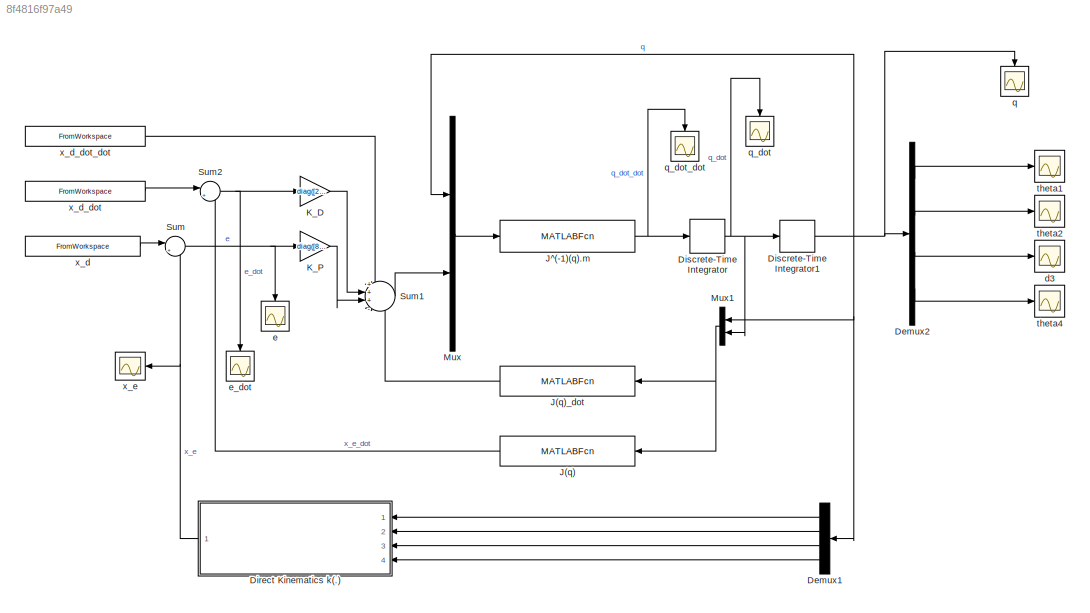
MODEL slx_8f4816f97a49
KIND model
CONFIG AbsTol = auto
CONFIG EnableMultiTasking = off
CONFIG FixedStep = auto
CONFIG MaxStep = auto
CONFIG MinStep = auto
CONFIG RelTol = 1e-3
CONFIG SampleTimeConstraint = Unconstrained
CONFIG Solver = VariableStepAuto
CONFIG SolverName = VariableStepAuto
CONFIG StartTime = 0.0
CONFIG StopTime = 4
BLOCK [Demux] Demux1
  DisplayOption = bar
  Ports = [1, 4]
BLOCK [Demux] Demux2
  DisplayOption = bar
  Ports = [1, 4]
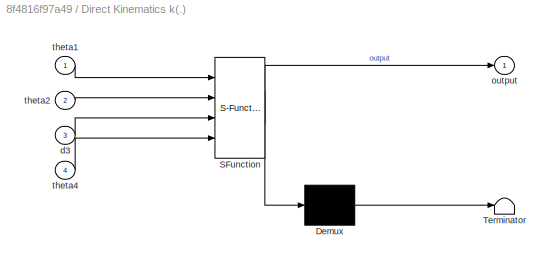
BLOCK [SubSystem] Direct Kinematics k(.)
  ErrorFcn = Stateflow.Translate.translate
  PermitHierarchicalResolution = ExplicitOnly
  Ports = [4, 1]
  RequestExecContextInheritance = off
  SFBlockType = MATLAB Function
  TreatAsAtomicUnit = on
BLOCK [Demux] Direct Kinematics k(.)/ Demux 
  Outputs = 1
  Ports = [1, 1]
BLOCK [S-Function] Direct Kinematics k(.)/ SFunction 
  EnableBusSupport = on
  FunctionName = sf_sfun
  PortCounts = [4 2]
  Ports = [4, 2]
  SFcnIsStateOwnerBlock = off
  SFunctionDeploymentMode = off
  Tag = Stateflow S-Function clik_second_order_inverse_2018 1
BLOCK [Terminator] Direct Kinematics k(.)/ Terminator 
BLOCK [Inport] Direct Kinematics k(.)/d3
  IconDisplay = Port number
  Port = 3
BLOCK [Outport] Direct Kinematics k(.)/output
  IconDisplay = Port number
BLOCK [Inport] Direct Kinematics k(.)/theta1
  IconDisplay = Port number
BLOCK [Inport] Direct Kinematics k(.)/theta2
  IconDisplay = Port number
  Port = 2
BLOCK [Inport] Direct Kinematics k(.)/theta4
  IconDisplay = Port number
  Port = 4
BLOCK [DiscreteIntegrator] Discrete-Time Integrator
  ICPrevOutput = DiscIntNeverNeededParam
  ICPrevScaledInput = DiscIntNeverNeededParam
  InitialCondition = q0_dot
  InitialConditionSetting = Auto
  Ports = [1, 1]
  SampleTime = Tc
  gainval = 1
BLOCK [DiscreteIntegrator] Discrete-Time Integrator1
  ICPrevOutput = DiscIntNeverNeededParam
  ICPrevScaledInput = DiscIntNeverNeededParam
  InitialCondition = q0
  InitialConditionSetting = Auto
  Ports = [1, 1]
  SampleTime = Tc
BLOCK [MATLABFcn] J(q)
  MATLABFcn = Jacobian
  Ports = [1, 1]
BLOCK [MATLABFcn] J(q)_dot
  MATLABFcn = Jacobian_dot
  Ports = [1, 1]
BLOCK [MATLABFcn] J^(-1)(q).m
  MATLABFcn = Jacobian_inverse
  Ports = [1, 1]
BLOCK [Gain] K_D
  Gain = diag([250 250 1000 1000])
  Multiplication = Matrix(K*u)
  OutDataTypeStr = Inherit: Inherit via internal rule
  ParamDataTypeStr = Inherit: Inherit via internal rule
  SaturateOnIntegerOverflow = off
BLOCK [Gain] K_P
  Gain = diag([8000 8000 80000 80000])
  Multiplication = Matrix(K*u)
  OutDataTypeStr = Inherit: Inherit via internal rule
  ParamDataTypeStr = Inherit: Inherit via internal rule
  SaturateOnIntegerOverflow = off
BLOCK [Mux] Mux
  DisplayOption = bar
  Inputs = 2
  Ports = [2, 1]
BLOCK [Mux] Mux1
  DisplayOption = bar
  Inputs = 2
  Ports = [2, 1]
BLOCK [Sum] Sum
  IconShape = round
  InputSameDT = off
  Inputs = |+-
  OutDataTypeStr = Inherit: Inherit via internal rule
  Ports = [2, 1]
  SaturateOnIntegerOverflow = off
BLOCK [Sum] Sum1
  IconShape = round
  InputSameDT = off
  Inputs = +++-
  OutDataTypeStr = Inherit: Inherit via internal rule
  Ports = [4, 1]
  SaturateOnIntegerOverflow = off
BLOCK [Sum] Sum2
  IconShape = round
  InputSameDT = off
  Inputs = |+-
  OutDataTypeStr = Inherit: Inherit via internal rule
  Ports = [2, 1]
  SaturateOnIntegerOverflow = off
BLOCK [Scope] d3
  Floating = off
  NumInputPorts = 1
  Ports = [1]
  ScopeSpecificationString = Simulink.scopes.TimeScopeBlockCfg('CurrentConfiguration', extmgr.ConfigurationSet(extmgr.Configuration('Core','General UI',true),extmgr.Configuration('Core','Source UI',true),extmgr.Configuration('Sources','WiredSimulink',true,'DataLoggingVariableName','d3','DataLogging',true,'DataLoggingSaveFormat','Array'),extmgr.Configuration('Visuals','Time Domain',true,'SerializedDisplays',{struct('MinYLimRea...<+1437ch>
BLOCK [Scope] e
  Floating = off
  NumInputPorts = 1
  Ports = [1]
  ScopeSpecificationString = Simulink.scopes.TimeScopeBlockCfg('CurrentConfiguration', extmgr.ConfigurationSet(extmgr.Configuration('Core','General UI',true),extmgr.Configuration('Core','Source UI',true),extmgr.Configuration('Sources','WiredSimulink',true,'DataLoggingVariableName','e','DataLogging',true,'DataLoggingSaveFormat','Array'),extmgr.Configuration('Visuals','Time Domain',true,'SerializedDisplays',{struct('MinYLimReal...<+1501ch>
BLOCK [Scope] e_dot
  Floating = off
  NumInputPorts = 1
  Ports = [1]
  ScopeSpecificationString = Simulink.scopes.TimeScopeBlockCfg('CurrentConfiguration', extmgr.ConfigurationSet(extmgr.Configuration('Core','General UI',true),extmgr.Configuration('Core','Source UI',true),extmgr.Configuration('Sources','WiredSimulink',true,'DataLoggingVariableName','ScopeData1','DataLoggingSaveFormat','Array'),extmgr.Configuration('Visuals','Time Domain',true,'SerializedDisplays',{struct('MinYLimReal','-0.8736...<+1509ch>
BLOCK [Scope] q
  Floating = off
  NumInputPorts = 1
  Ports = [1]
  ScopeSpecificationString = Simulink.scopes.TimeScopeBlockCfg('CurrentConfiguration', extmgr.ConfigurationSet(extmgr.Configuration('Core','General UI',true),extmgr.Configuration('Core','Source UI',true),extmgr.Configuration('Sources','WiredSimulink',true,'DataLoggingVariableName','q','DataLogging',true,'DataLoggingSaveFormat','Array'),extmgr.Configuration('Visuals','Time Domain',true,'SerializedDisplays',{struct('MinYLimReal...<+1546ch>
BLOCK [Scope] q_dot
  Floating = off
  NumInputPorts = 1
  Ports = [1]
  ScopeSpecificationString = Simulink.scopes.TimeScopeBlockCfg('CurrentConfiguration', extmgr.ConfigurationSet(extmgr.Configuration('Core','General UI',true),extmgr.Configuration('Core','Source UI',true),extmgr.Configuration('Sources','WiredSimulink',true,'DataLoggingVariableName','q_dot','DataLogging',true,'DataLoggingSaveFormat','Array'),extmgr.Configuration('Visuals','Time Domain',true,'SerializedDisplays',{struct('MinYLim...<+1594ch>
BLOCK [Scope] q_dot_dot
  Floating = off
  NumInputPorts = 1
  Ports = [1]
  ScopeSpecificationString = Simulink.scopes.TimeScopeBlockCfg('CurrentConfiguration', extmgr.ConfigurationSet(extmgr.Configuration('Core','General UI',true),extmgr.Configuration('Core','Source UI',true),extmgr.Configuration('Sources','WiredSimulink',true,'DataLoggingVariableName','q_dot_dot','DataLogging',true,'DataLoggingSaveFormat','Array'),extmgr.Configuration('Visuals','Time Domain',true,'SerializedDisplays',{struct('Min...<+1624ch>
BLOCK [Scope] theta1
  Floating = off
  NumInputPorts = 1
  Ports = [1]
  ScopeSpecificationString = Simulink.scopes.TimeScopeBlockCfg('CurrentConfiguration', extmgr.ConfigurationSet(extmgr.Configuration('Core','General UI',true),extmgr.Configuration('Core','Source UI',true),extmgr.Configuration('Sources','WiredSimulink',true,'DataLoggingVariableName','theta1','DataLogging',true,'DataLoggingSaveFormat','Array'),extmgr.Configuration('Visuals','Time Domain',true,'SerializedDisplays',{struct('MinYLi...<+1445ch>
BLOCK [Scope] theta2
  Floating = off
  NumInputPorts = 1
  Ports = [1]
  ScopeSpecificationString = Simulink.scopes.TimeScopeBlockCfg('CurrentConfiguration', extmgr.ConfigurationSet(extmgr.Configuration('Core','General UI',true),extmgr.Configuration('Core','Source UI',true),extmgr.Configuration('Sources','WiredSimulink',true,'DataLoggingVariableName','theta2','DataLogging',true,'DataLoggingSaveFormat','Array'),extmgr.Configuration('Visuals','Time Domain',true,'SerializedDisplays',{struct('MinYLi...<+1457ch>
BLOCK [Scope] theta4
  Floating = off
  NumInputPorts = 1
  Ports = [1]
  ScopeSpecificationString = Simulink.scopes.TimeScopeBlockCfg('CurrentConfiguration', extmgr.ConfigurationSet(extmgr.Configuration('Core','General UI',true),extmgr.Configuration('Core','Source UI',true),extmgr.Configuration('Sources','WiredSimulink',true,'DataLoggingVariableName','theta4','DataLogging',true,'DataLoggingSaveFormat','Array'),extmgr.Configuration('Visuals','Time Domain',true,'SerializedDisplays',{struct('MinYLi...<+1454ch>
BLOCK [FromWorkspace] x_d
  SampleTime = Tc
  VariableName = [t pd theta_d]
  ZeroCross = on
BLOCK [FromWorkspace] x_d_dot
  SampleTime = Tc
  VariableName = [t pd_dot theta_d_dot]
  ZeroCross = on
BLOCK [FromWorkspace] x_d_dot_dot
  SampleTime = Tc
  VariableName = [t pd_dot_dot theta_d_dot_dot]
  ZeroCross = on
BLOCK [Scope] x_e
  Floating = off
  NumInputPorts = 1
  Ports = [1]
  ScopeSpecificationString = Simulink.scopes.TimeScopeBlockCfg('CurrentConfiguration', extmgr.ConfigurationSet(extmgr.Configuration('Core','General UI',true),extmgr.Configuration('Core','Source UI',true),extmgr.Configuration('Sources','WiredSimulink',true,'DataLoggingVariableName','ScopeData1'),extmgr.Configuration('Visuals','Time Domain',true,'SerializedDisplays',{struct('MinYLimReal','-1.33642','MaxYLimReal','4.02776','YLab...<+1430ch>
LINE Demux1:1 -> Direct Kinematics k(.):1
LINE Demux1:2 -> Direct Kinematics k(.):2
LINE Demux1:3 -> Direct Kinematics k(.):3
LINE Demux1:4 -> Direct Kinematics k(.):4
LINE Demux2:1 -> theta1:1
LINE Demux2:2 -> theta2:1
LINE Demux2:3 -> d3:1
LINE Demux2:4 -> theta4:1
NET Direct Kinematics k(.):1 -> Sum:2, x_e:1
NET Discrete-Time Integrator1:1 -> Demux1:1, Demux2:1, Mux1:1, Mux:1, q:1
NET Discrete-Time Integrator:1 -> Discrete-Time Integrator1:1, Mux1:2, q_dot:1
LINE J(q):1 -> Sum2:2
LINE J(q)_dot:1 -> Sum1:4
NET J^(-1)(q).m:1 -> Discrete-Time Integrator:1, q_dot_dot:1
LINE K_D:1 -> Sum1:2
LINE K_P:1 -> Sum1:3
NET Mux1:1 -> J(q):1, J(q)_dot:1
LINE Mux:1 -> J^(-1)(q).m:1
LINE Sum1:1 -> Mux:2
NET Sum2:1 -> K_D:1, e_dot:1
NET Sum:1 -> K_P:1, e:1
LINE x_d:1 -> Sum:1
LINE x_d_dot:1 -> Sum2:1
LINE x_d_dot_dot:1 -> Sum1:1
note: NET lines group one-source signal fan-out (src -> all destinations, sorted); 1:1 wires keep LINE
CHART Direct Kinematics
k(.) states=1 transitions=1
  STATE_LABEL 'eML_blk_kernel()'
  STATE_LABEL 'SCRIPT:\nfunction output = direct_kin(theta1,theta2,d3,theta4)\n% Direct kinematics function of SCARA \n    A01 = [cos(theta1) -sin(theta1) 0 0.5.*cos(theta1);\n           sin(theta1) cos(theta1) 0 0.5.*sin(theta1);\n           0 0 1 0;\n           0 0 0 1];\n    A12 = [cos(theta2) -sin(theta2) 0 0.5.*cos(theta2);\n           sin(theta2) cos(theta2) 0 0.5.*sin(theta2);\n           0 0 1 0;\n           0 0 0...<+374ch>'
